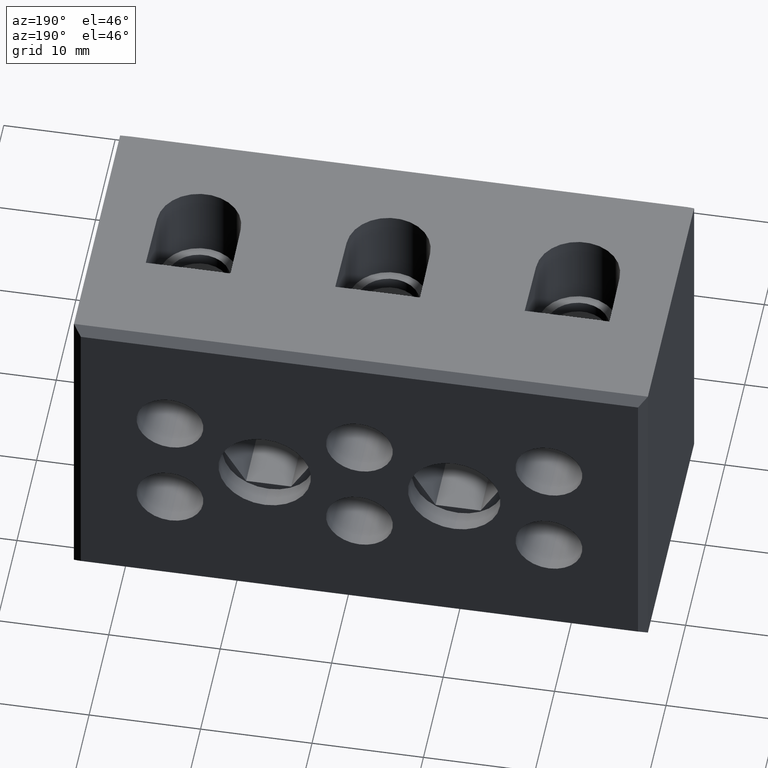
[diagram: clean part render]
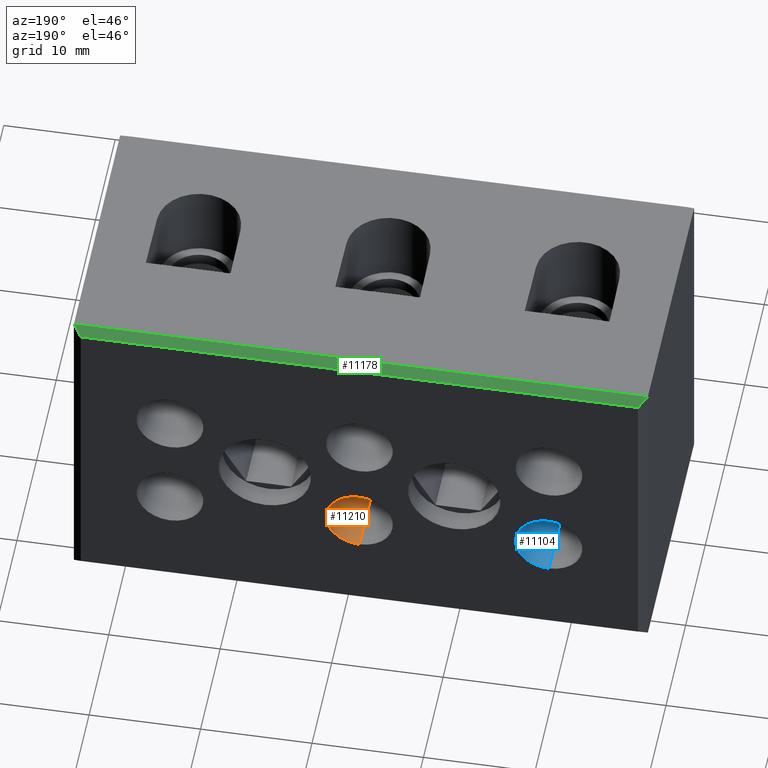
[diagram: same view with three faces highlighted in distinct colors, each labeled with its STEP entity id]
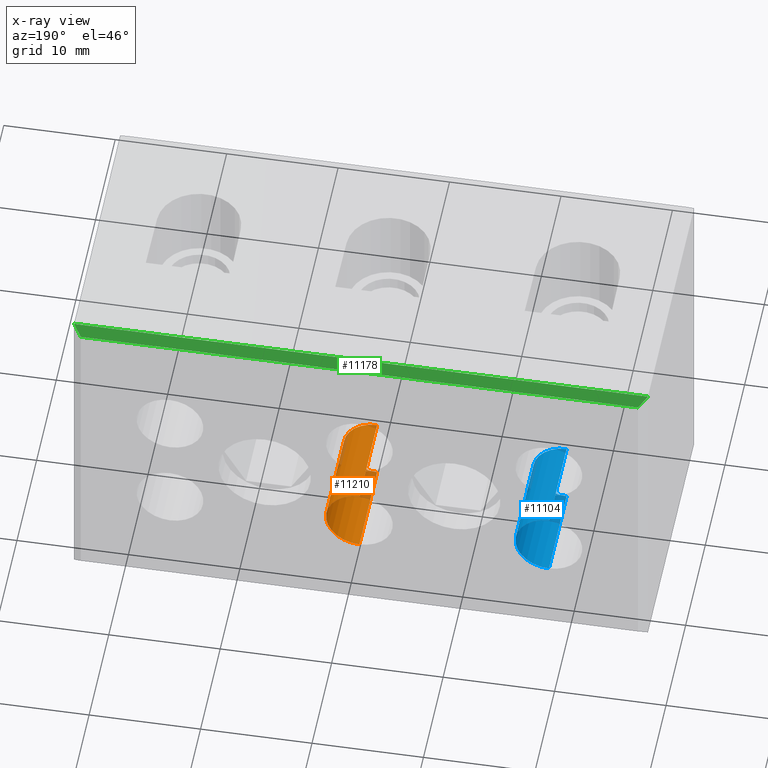
[diagram: x-ray of the same camera — body ghosted, the three highlighted faces saturated]
A machine part, auxiliary view with three faces highlighted in distinct colors.
The next image is the same camera in x-ray (body ghosted, the three faces saturated) — at least one of them is partly hidden behind the body in this view.
Their STEP definitions:

[orange] entity #11210 — the highlighted cylindrical surface (edge-blend (fillet) strip) has radius 3 mm, axis along (0, 1, 0).
#44 = EDGE_LOOP ( 'NONE', ( #6911, #6925, #6980, #6943 ) ) ;
#351 = VERTEX_POINT ( 'NONE', #8078 ) ;
#437 = VERTEX_POINT ( 'NONE', #8178 ) ;
#438 = VERTEX_POINT ( 'NONE', #8164 ) ;
#455 = VERTEX_POINT ( 'NONE', #8132 ) ;
#3295 = DIRECTION ( 'NONE',  ( 0.0000000000000000000, 0.0000000000000000000, 1.000000000000000000 ) ) ;
#3312 = DIRECTION ( 'NONE',  ( 0.0000000000000000000, 1.000000000000000000, 0.0000000000000000000 ) ) ;
#3317 = CARTESIAN_POINT ( 'NONE',  ( 378.7158352908286400, 353.1299441412573400, 10.34999999999998000 ) ) ;
#3338 = CARTESIAN_POINT ( 'NONE',  ( 378.7158352908286400, 344.1457525250180000, 10.34999999999998000 ) ) ;
#3396 = DIRECTION ( 'NONE',  ( 0.0000000000000000000, 0.0000000000000000000, 1.000000000000000000 ) ) ;
#3401 = DIRECTION ( 'NONE',  ( 0.0000000000000000000, 1.000000000000000000, 0.0000000000000000000 ) ) ;
#4443 = CARTESIAN_POINT ( 'NONE',  ( 378.7158352908286400, 337.1299441412572800, 10.34999999999998000 ) ) ;
#4447 = DIRECTION ( 'NONE',  ( 0.0000000000000000000, 0.0000000000000000000, 1.000000000000000000 ) ) ;
#4456 = CYLINDRICAL_SURFACE ( 'NONE', #5447, 3.000000000000020000 ) ;
#4487 = FACE_OUTER_BOUND ( 'NONE', #44, .T. ) ;
#4488 = DIRECTION ( 'NONE',  ( 0.0000000000000000000, 1.000000000000000000, 0.0000000000000000000 ) ) ;
#5059 = CIRCLE ( 'NONE', #5063, 3.000000000000020000 ) ;
#5063 = AXIS2_PLACEMENT_3D ( 'NONE', #3317, #3312, #3295 ) ;
#5087 = CIRCLE ( 'NONE', #5098, 3.000000000000020000 ) ;
#5098 = AXIS2_PLACEMENT_3D ( 'NONE', #3338, #3401, #3396 ) ;
#5447 = AXIS2_PLACEMENT_3D ( 'NONE', #4443, #4488, #4447 ) ;
#6911 = ORIENTED_EDGE ( 'NONE', *, *, #8918, .F. ) ;
#6925 = ORIENTED_EDGE ( 'NONE', *, *, #10833, .F. ) ;
#6943 = ORIENTED_EDGE ( 'NONE', *, *, #10810, .T. ) ;
#6980 = ORIENTED_EDGE ( 'NONE', *, *, #8915, .T. ) ;
#8078 = CARTESIAN_POINT ( 'NONE',  ( 378.7158352908286400, 344.1457525250180000, 7.349999999999960600 ) ) ;
#8132 = CARTESIAN_POINT ( 'NONE',  ( 378.7158352908286400, 353.1299441412573400, 13.35000000000000100 ) ) ;
#8164 = CARTESIAN_POINT ( 'NONE',  ( 378.7158352908286400, 353.1299441412573400, 7.349999999999960600 ) ) ;
#8178 = CARTESIAN_POINT ( 'NONE',  ( 378.7158352908286400, 344.1457525250180000, 13.35000000000000100 ) ) ;
#8915 = EDGE_CURVE ( 'NONE', #437, #455, #9411, .T. ) ;
#8918 = EDGE_CURVE ( 'NONE', #351, #438, #9429, .T. ) ;
#9395 = DIRECTION ( 'NONE',  ( 0.0000000000000000000, 1.000000000000000000, 0.0000000000000000000 ) ) ;
#9401 = CARTESIAN_POINT ( 'NONE',  ( 378.7158352908286400, 337.1299441412572800, 13.35000000000000100 ) ) ;
#9411 = LINE ( 'NONE', #9401, #12084 ) ;
#9419 = CARTESIAN_POINT ( 'NONE',  ( 378.7158352908286400, 337.1299441412572800, 7.349999999999960600 ) ) ;
#9426 = DIRECTION ( 'NONE',  ( 0.0000000000000000000, 1.000000000000000000, 0.0000000000000000000 ) ) ;
#9429 = LINE ( 'NONE', #9419, #12150 ) ;
#10810 = EDGE_CURVE ( 'NONE', #455, #438, #5059, .T. ) ;
#10833 = EDGE_CURVE ( 'NONE', #437, #351, #5087, .T. ) ;
#11210 = ADVANCED_FACE ( 'NONE', ( #4487 ), #4456, .F. ) ;
#12084 = VECTOR ( 'NONE', #9426, 1000.000000000000000 ) ;
#12150 = VECTOR ( 'NONE', #9395, 1000.000000000000000 ) ;

[blue] entity #11104 — the highlighted cylindrical surface (edge-blend (fillet) strip) has radius 3 mm, axis along (0, 1, 0).
#79 = EDGE_LOOP ( 'NONE', ( #6906, #6927, #6909, #6959 ) ) ;
#372 = VERTEX_POINT ( 'NONE', #8104 ) ;
#392 = VERTEX_POINT ( 'NONE', #8119 ) ;
#398 = VERTEX_POINT ( 'NONE', #8089 ) ;
#429 = VERTEX_POINT ( 'NONE', #8168 ) ;
#3301 = CARTESIAN_POINT ( 'NONE',  ( 361.7158352908286400, 344.1457525250180000, 10.34999999999998000 ) ) ;
#3311 = DIRECTION ( 'NONE',  ( 0.0000000000000000000, 1.000000000000000000, 0.0000000000000000000 ) ) ;
#3315 = DIRECTION ( 'NONE',  ( 0.0000000000000000000, 0.0000000000000000000, 1.000000000000000000 ) ) ;
#3382 = DIRECTION ( 'NONE',  ( 0.0000000000000000000, 1.000000000000000000, 0.0000000000000000000 ) ) ;
#3386 = DIRECTION ( 'NONE',  ( 0.0000000000000000000, 0.0000000000000000000, 1.000000000000000000 ) ) ;
#3409 = CARTESIAN_POINT ( 'NONE',  ( 361.7158352908286400, 353.1299441412573400, 10.34999999999998000 ) ) ;
#3741 = CYLINDRICAL_SURFACE ( 'NONE', #5358, 3.000000000000020000 ) ;
#3756 = DIRECTION ( 'NONE',  ( 0.0000000000000000000, 1.000000000000000000, 0.0000000000000000000 ) ) ;
#3759 = FACE_OUTER_BOUND ( 'NONE', #79, .T. ) ;
#3760 = DIRECTION ( 'NONE',  ( 0.0000000000000000000, 0.0000000000000000000, 1.000000000000000000 ) ) ;
#3770 = CARTESIAN_POINT ( 'NONE',  ( 361.7158352908286400, 337.1299441412572800, 10.34999999999998000 ) ) ;
#5017 = CIRCLE ( 'NONE', #5071, 3.000000000000020000 ) ;
#5071 = AXIS2_PLACEMENT_3D ( 'NONE', #3301, #3311, #3315 ) ;
#5099 = AXIS2_PLACEMENT_3D ( 'NONE', #3409, #3382, #3386 ) ;
#5124 = CIRCLE ( 'NONE', #5099, 3.000000000000020000 ) ;
#5358 = AXIS2_PLACEMENT_3D ( 'NONE', #3770, #3756, #3760 ) ;
#6906 = ORIENTED_EDGE ( 'NONE', *, *, #8920, .F. ) ;
#6909 = ORIENTED_EDGE ( 'NONE', *, *, #8931, .T. ) ;
#6927 = ORIENTED_EDGE ( 'NONE', *, *, #10806, .F. ) ;
#6959 = ORIENTED_EDGE ( 'NONE', *, *, #10837, .T. ) ;
#8089 = CARTESIAN_POINT ( 'NONE',  ( 361.7158352908286400, 353.1299441412573400, 7.349999999999960600 ) ) ;
#8104 = CARTESIAN_POINT ( 'NONE',  ( 361.7158352908286400, 344.1457525250180000, 13.35000000000000100 ) ) ;
#8119 = CARTESIAN_POINT ( 'NONE',  ( 361.7158352908286400, 344.1457525250180000, 7.349999999999960600 ) ) ;
#8168 = CARTESIAN_POINT ( 'NONE',  ( 361.7158352908286400, 353.1299441412573400, 13.35000000000000100 ) ) ;
#8920 = EDGE_CURVE ( 'NONE', #392, #398, #9412, .T. ) ;
#8931 = EDGE_CURVE ( 'NONE', #372, #429, #9470, .T. ) ;
#9402 = DIRECTION ( 'NONE',  ( 0.0000000000000000000, 1.000000000000000000, 0.0000000000000000000 ) ) ;
#9412 = LINE ( 'NONE', #9416, #12122 ) ;
#9416 = CARTESIAN_POINT ( 'NONE',  ( 361.7158352908286400, 337.1299441412572800, 7.349999999999960600 ) ) ;
#9467 = CARTESIAN_POINT ( 'NONE',  ( 361.7158352908286400, 337.1299441412572800, 13.35000000000000100 ) ) ;
#9470 = LINE ( 'NONE', #9467, #12141 ) ;
#9476 = DIRECTION ( 'NONE',  ( 0.0000000000000000000, 1.000000000000000000, 0.0000000000000000000 ) ) ;
#10806 = EDGE_CURVE ( 'NONE', #372, #392, #5017, .T. ) ;
#10837 = EDGE_CURVE ( 'NONE', #429, #398, #5124, .T. ) ;
#11104 = ADVANCED_FACE ( 'NONE', ( #3759 ), #3741, .F. ) ;
#12122 = VECTOR ( 'NONE', #9402, 1000.000000000000000 ) ;
#12141 = VECTOR ( 'NONE', #9476, 1000.000000000000000 ) ;

[green] entity #11178 — the highlighted planar face has unit normal (-0, 0.7071, 0.7071).
#123 = EDGE_LOOP ( 'NONE', ( #5789, #5845, #5792, #5764 ) ) ;
#790 = VERTEX_POINT ( 'NONE', #7336 ) ;
#796 = VERTEX_POINT ( 'NONE', #7384 ) ;
#840 = VERTEX_POINT ( 'NONE', #7421 ) ;
#889 = VERTEX_POINT ( 'NONE', #7472 ) ;
#4236 = FACE_OUTER_BOUND ( 'NONE', #123, .T. ) ;
#4238 = CARTESIAN_POINT ( 'NONE',  ( 353.2158352908286400, 353.1299441412573400, 29.25000000000002500 ) ) ;
#4253 = PLANE ( 'NONE',  #5489 ) ;
#4256 = DIRECTION ( 'NONE',  ( 0.0000000000000000000, -0.7071067811865376900, 0.7071067811865574500 ) ) ;
#4269 = DIRECTION ( 'NONE',  ( -0.0000000000000000000, 0.7071067811865574500, 0.7071067811865376900 ) ) ;
#5489 = AXIS2_PLACEMENT_3D ( 'NONE', #4238, #4269, #4256 ) ;
#5764 = ORIENTED_EDGE ( 'NONE', *, *, #8572, .F. ) ;
#5789 = ORIENTED_EDGE ( 'NONE', *, *, #8565, .F. ) ;
#5792 = ORIENTED_EDGE ( 'NONE', *, *, #8589, .T. ) ;
#5845 = ORIENTED_EDGE ( 'NONE', *, *, #8525, .T. ) ;
#7336 = CARTESIAN_POINT ( 'NONE',  ( 403.7158352908286400, 353.1299441412573400, 29.25000000000002500 ) ) ;
#7384 = CARTESIAN_POINT ( 'NONE',  ( 352.9658352908285800, 352.3799441412573400, 30.00000000000002800 ) ) ;
#7421 = CARTESIAN_POINT ( 'NONE',  ( 353.7158352908286400, 353.1299441412573400, 29.25000000000002500 ) ) ;
#7472 = CARTESIAN_POINT ( 'NONE',  ( 404.4658352908286900, 352.3799441412573400, 30.00000000000004300 ) ) ;
#7710 = LINE ( 'NONE', #7728, #12340 ) ;
#7721 = DIRECTION ( 'NONE',  ( -1.000000000000000000, -0.0000000000000000000, -0.0000000000000000000 ) ) ;
#7728 = CARTESIAN_POINT ( 'NONE',  ( 353.2158352908286400, 353.1299441412573400, 29.25000000000002500 ) ) ;
#8525 = EDGE_CURVE ( 'NONE', #790, #840, #7710, .T. ) ;
#8565 = EDGE_CURVE ( 'NONE', #790, #889, #12028, .T. ) ;
#8572 = EDGE_CURVE ( 'NONE', #889, #796, #11293, .T. ) ;
#8589 = EDGE_CURVE ( 'NONE', #840, #796, #11274, .T. ) ;
#11178 = ADVANCED_FACE ( 'NONE', ( #4236 ), #4253, .T. ) ;
#11274 = LINE ( 'NONE', #11305, #12412 ) ;
#11276 = CARTESIAN_POINT ( 'NONE',  ( 353.9658352908285800, 352.3799441412573400, 30.00000000000002500 ) ) ;
#11278 = DIRECTION ( 'NONE',  ( -1.000000000000000000, -0.0000000000000000000, 0.0000000000000000000 ) ) ;
#11293 = LINE ( 'NONE', #11276, #12398 ) ;
#11305 = CARTESIAN_POINT ( 'NONE',  ( 353.7158352908286400, 353.1299441412573400, 29.25000000000002500 ) ) ;
#11323 = DIRECTION ( 'NONE',  ( -0.5773502691895946400, -0.5773502691896373900, 0.5773502691896452700 ) ) ;
#12028 = LINE ( 'NONE', #12044, #12408 ) ;
#12044 = CARTESIAN_POINT ( 'NONE',  ( 403.7158352908286400, 353.1299441412573400, 29.25000000000002500 ) ) ;
#12052 = DIRECTION ( 'NONE',  ( 0.5773502691896337200, -0.5773502691896337200, 0.5773502691896097400 ) ) ;
#12340 = VECTOR ( 'NONE', #7721, 1000.000000000000000 ) ;
#12398 = VECTOR ( 'NONE', #11278, 1000.000000000000000 ) ;
#12408 = VECTOR ( 'NONE', #12052, 1000.000000000000200 ) ;
#12412 = VECTOR ( 'NONE', #11323, 1000.000000000000100 ) ;